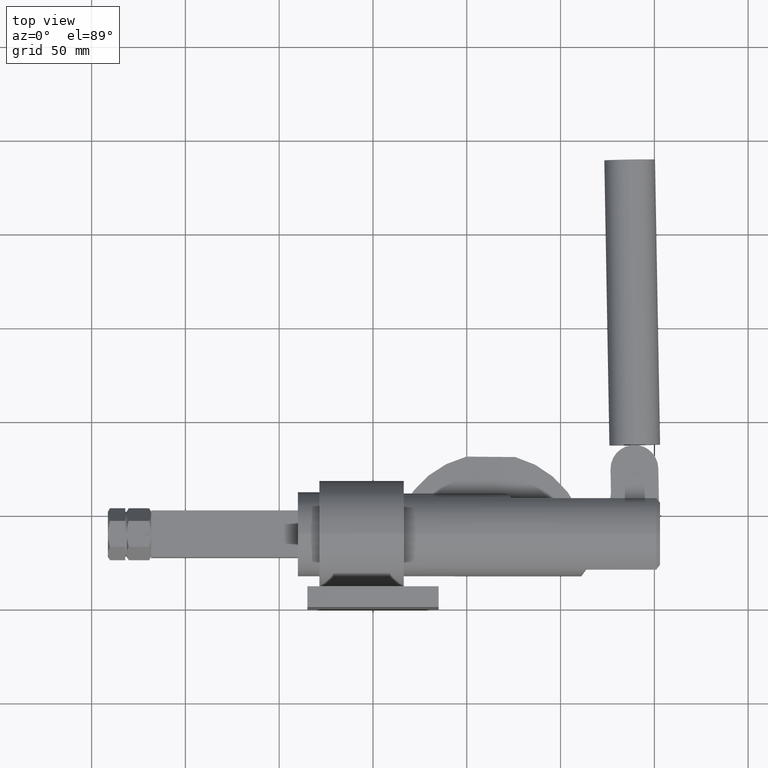
[diagram: clean part render]
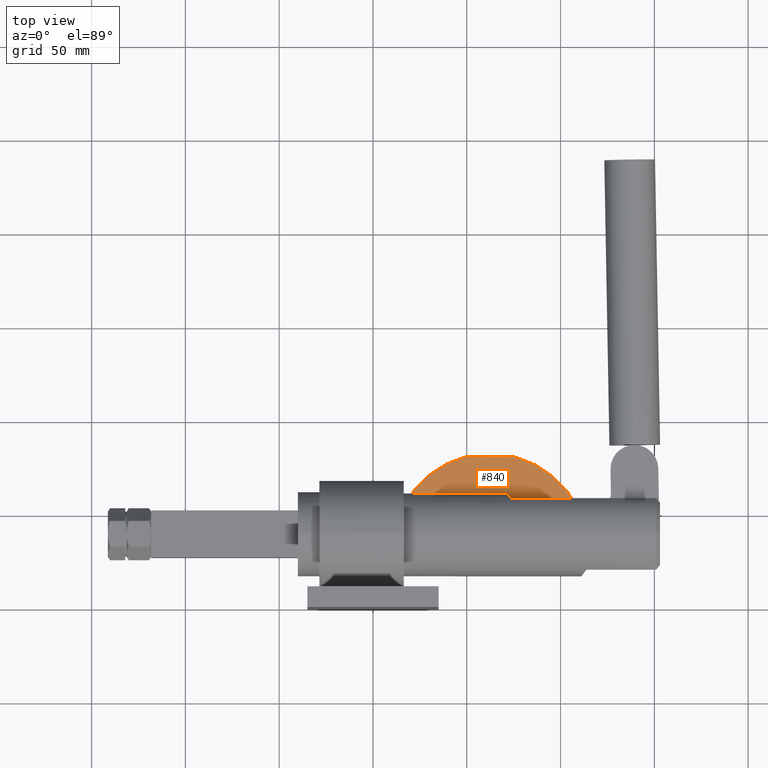
[diagram: same view with one face highlighted and labeled with its STEP entity id]
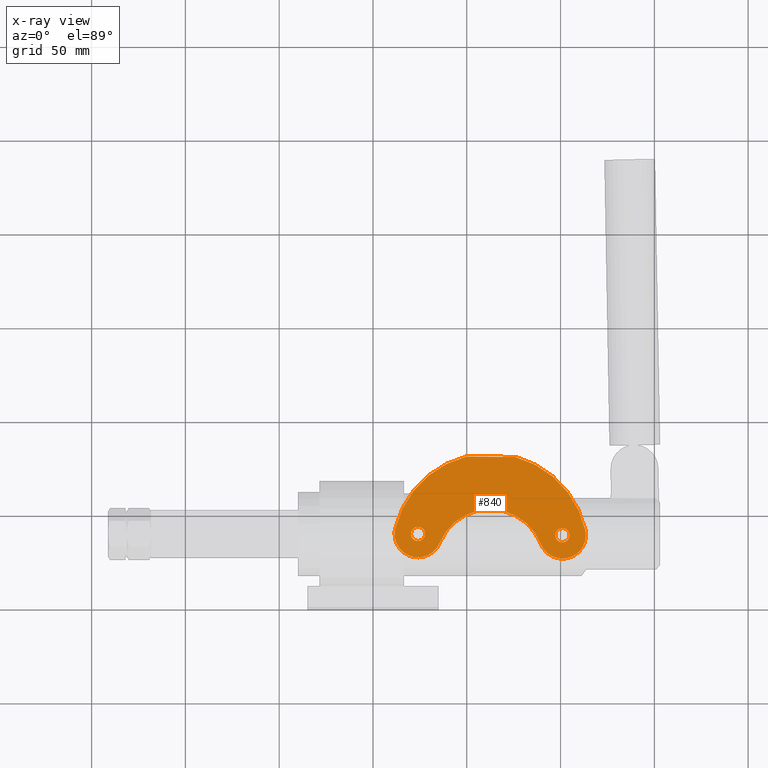
[diagram: x-ray of the same camera — body ghosted, the highlighted face saturated]
A machine part, top view. The second image highlights one B-rep face of the part: STEP entity #840.
The next image is the same camera in x-ray: the body ghosted, the highlighted face saturated — about 0% of this face is hidden behind the body in this view.
In plain terms, the highlighted planar face has unit normal (0, -0, 1).
Its self-contained STEP definition (entity closure, byte-faithful):
#4 = EDGE_CURVE ( 'NONE', #3990, #2941, #3293, .T. ) ;
#37 = CIRCLE ( 'NONE', #846, 3.750000000000010200 ) ;
#49 = CARTESIAN_POINT ( 'NONE',  ( 24.00934340271856400, 35.85000000000053400, 5.999999999999998200 ) ) ;
#122 = CARTESIAN_POINT ( 'NONE',  ( 101.0062022095644400, 38.90449020234226700, 6.000000000000000000 ) ) ;
#154 = CIRCLE ( 'NONE', #991, 3.750000000000003600 ) ;
#159 = AXIS2_PLACEMENT_3D ( 'NONE', #2411, #2856, #276 ) ;
#188 = AXIS2_PLACEMENT_3D ( 'NONE', #122, #3160, #562 ) ;
#233 = FACE_BOUND ( 'NONE', #352, .T. ) ;
#276 = DIRECTION ( 'NONE',  ( 0.9999592052837128500, -0.009032594774782706400, -2.601749581763633000E-021 ) ) ;
#322 = EDGE_CURVE ( 'NONE', #4921, #3791, #768, .T. ) ;
#352 = EDGE_LOOP ( 'NONE', ( #4397, #4236 ) ) ;
#371 = DIRECTION ( 'NONE',  ( 0.0000000000000000000, -1.000000000000000000, 0.0000000000000000000 ) ) ;
#374 = FACE_BOUND ( 'NONE', #2447, .T. ) ;
#413 = DIRECTION ( 'NONE',  ( 2.568924252365853200E-021, -3.645699685958769200E-021, 1.000000000000000000 ) ) ;
#428 = EDGE_CURVE ( 'NONE', #4684, #3716, #4535, .T. ) ;
#562 = DIRECTION ( 'NONE',  ( 0.9999592052837128500, -0.009032594774782689100, 0.0000000000000000000 ) ) ;
#605 = CARTESIAN_POINT ( 'NONE',  ( 113.2144943362974300, 41.58918820181060000, 6.000000000000000000 ) ) ;
#638 = EDGE_CURVE ( 'NONE', #3791, #4921, #37, .T. ) ;
#768 = CIRCLE ( 'NONE', #3939, 3.750000000000010200 ) ;
#793 = AXIS2_PLACEMENT_3D ( 'NONE', #2225, #5220, #2669 ) ;
#832 = ORIENTED_EDGE ( 'NONE', *, *, #3445, .T. ) ;
#840 = ADVANCED_FACE ( 'NONE', ( #2379, #233, #374 ), #3705, .T. ) ;
#846 = AXIS2_PLACEMENT_3D ( 'NONE', #4432, #1874, #4880 ) ;
#885 = EDGE_CURVE ( 'NONE', #5464, #1428, #4868, .T. ) ;
#991 = AXIS2_PLACEMENT_3D ( 'NONE', #5508, #2950, #371 ) ;
#1054 = VERTEX_POINT ( 'NONE', #49 ) ;
#1055 = DIRECTION ( 'NONE',  ( 0.0000000000000000000, -1.000000000000000000, 0.0000000000000000000 ) ) ;
#1135 = VERTEX_POINT ( 'NONE', #2675 ) ;
#1177 = CARTESIAN_POINT ( 'NONE',  ( 24.00934340271856400, 39.60000000000053400, 5.999999999999998200 ) ) ;
#1193 = ORIENTED_EDGE ( 'NONE', *, *, #1426, .T. ) ;
#1396 = EDGE_CURVE ( 'NONE', #3716, #3990, #5123, .T. ) ;
#1426 = EDGE_CURVE ( 'NONE', #1135, #1054, #154, .T. ) ;
#1428 = VERTEX_POINT ( 'NONE', #4638 ) ;
#1444 = CARTESIAN_POINT ( 'NONE',  ( 11.50985333667216000, 39.71290743468532000, 6.000000000000000000 ) ) ;
#1472 = AXIS2_PLACEMENT_3D ( 'NONE', #1177, #4203, #1624 ) ;
#1550 = CARTESIAN_POINT ( 'NONE',  ( 49.81740754496326000, 80.86856975427673400, 6.000000000000000000 ) ) ;
#1624 = DIRECTION ( 'NONE',  ( 0.0000000000000000000, -1.000000000000000000, 0.0000000000000000000 ) ) ;
#1874 = DIRECTION ( 'NONE',  ( -2.568924252365853200E-021, 3.645699685958769200E-021, -1.000000000000000000 ) ) ;
#1936 = CARTESIAN_POINT ( 'NONE',  ( 101.0062022095644200, 38.90449020234226700, 5.999999999999998200 ) ) ;
#2033 = CARTESIAN_POINT ( 'NONE',  ( 24.00934340271856400, 39.60000000000053400, 6.000000000000000000 ) ) ;
#2088 = CARTESIAN_POINT ( 'NONE',  ( 62.36784044959841800, 23.76094370536889500, 6.000000000000000000 ) ) ;
#2103 = AXIS2_PLACEMENT_3D ( 'NONE', #2123, #5117, #2560 ) ;
#2123 = CARTESIAN_POINT ( 'NONE',  ( 24.00934340271856400, 39.60000000000053400, 6.000000000000000000 ) ) ;
#2163 = ORIENTED_EDGE ( 'NONE', *, *, #4132, .T. ) ;
#2225 = CARTESIAN_POINT ( 'NONE',  ( 62.42799908908818900, 30.42084452402235700, 6.000000000000000000 ) ) ;
#2379 = FACE_OUTER_BOUND ( 'NONE', #5135, .T. ) ;
#2411 = CARTESIAN_POINT ( 'NONE',  ( 62.42799908908818900, 30.42084452402235700, 6.000000000000000000 ) ) ;
#2423 = CARTESIAN_POINT ( 'NONE',  ( 101.0062022095644200, 35.15449020234225900, 5.999999999999998200 ) ) ;
#2447 = EDGE_LOOP ( 'NONE', ( #1193, #832 ) ) ;
#2476 = DIRECTION ( 'NONE',  ( 0.9999592052837128500, -0.009032594774782689100, 0.0000000000000000000 ) ) ;
#2502 = ORIENTED_EDGE ( 'NONE', *, *, #5234, .T. ) ;
#2560 = DIRECTION ( 'NONE',  ( 0.9999592052837128500, -0.009032594774782689100, 0.0000000000000000000 ) ) ;
#2610 = CARTESIAN_POINT ( 'NONE',  ( 49.81740754496326000, 80.86856975427673400, 6.000000000000000000 ) ) ;
#2669 = DIRECTION ( 'NONE',  ( 0.9999592052837128500, -0.009032594774782741100, 0.0000000000000000000 ) ) ;
#2675 = CARTESIAN_POINT ( 'NONE',  ( 24.00934340271856400, 43.35000000000054100, 5.999999999999998200 ) ) ;
#2856 = DIRECTION ( 'NONE',  ( 2.568924252365853200E-021, -3.645699685958769200E-021, 1.000000000000000000 ) ) ;
#2906 = CIRCLE ( 'NONE', #1472, 3.750000000000003600 ) ;
#2941 = VERTEX_POINT ( 'NONE', #3854 ) ;
#2950 = DIRECTION ( 'NONE',  ( -2.568924252365853200E-021, 3.645699685958769200E-021, -1.000000000000000000 ) ) ;
#2995 = CARTESIAN_POINT ( 'NONE',  ( 62.42799908908818900, 30.42084452402235700, 6.000000000000000000 ) ) ;
#3036 = DIRECTION ( 'NONE',  ( -0.9999592052837128500, 0.009032594774782706400, 2.601749581763633000E-021 ) ) ;
#3062 = CARTESIAN_POINT ( 'NONE',  ( 35.56310757346550800, 34.82919991125606900, 6.000000000000000000 ) ) ;
#3160 = DIRECTION ( 'NONE',  ( 2.568924252365853200E-021, -3.645699685958769200E-021, 1.000000000000000000 ) ) ;
#3193 = AXIS2_PLACEMENT_3D ( 'NONE', #2088, #3393, #3811 ) ;
#3232 = DIRECTION ( 'NONE',  ( -2.568924252365853200E-021, 3.645699685958769200E-021, -1.000000000000000000 ) ) ;
#3258 = CIRCLE ( 'NONE', #793, 51.99999999999999300 ) ;
#3293 = CIRCLE ( 'NONE', #3193, 29.00000000000000700 ) ;
#3332 = ORIENTED_EDGE ( 'NONE', *, *, #885, .T. ) ;
#3354 = AXIS2_PLACEMENT_3D ( 'NONE', #2995, #413, #3441 ) ;
#3393 = DIRECTION ( 'NONE',  ( -2.568924252365853200E-021, 3.645699685958769200E-021, -1.000000000000000000 ) ) ;
#3434 = AXIS2_PLACEMENT_3D ( 'NONE', #2033, #5027, #2476 ) ;
#3441 = DIRECTION ( 'NONE',  ( 0.9999592052837128500, -0.009032594774782741100, 0.0000000000000000000 ) ) ;
#3442 = ORIENTED_EDGE ( 'NONE', *, *, #4, .T. ) ;
#3445 = EDGE_CURVE ( 'NONE', #1054, #1135, #2906, .T. ) ;
#3468 = ORIENTED_EDGE ( 'NONE', *, *, #428, .T. ) ;
#3549 = EDGE_CURVE ( 'NONE', #5551, #4684, #3258, .T. ) ;
#3705 = PLANE ( 'NONE',  #159 ) ;
#3716 = VERTEX_POINT ( 'NONE', #1444 ) ;
#3791 = VERTEX_POINT ( 'NONE', #2423 ) ;
#3811 = DIRECTION ( 'NONE',  ( 0.9999592052837129600, -0.009032594774782758500, 0.0000000000000000000 ) ) ;
#3854 = CARTESIAN_POINT ( 'NONE',  ( 89.36814143849034100, 34.34318101650691100, 6.000000000000000000 ) ) ;
#3939 = AXIS2_PLACEMENT_3D ( 'NONE', #1936, #3232, #1055 ) ;
#3990 = VERTEX_POINT ( 'NONE', #3062 ) ;
#4014 = VECTOR ( 'NONE', #3036, 1000.000000000000000 ) ;
#4076 = ORIENTED_EDGE ( 'NONE', *, *, #1396, .T. ) ;
#4132 = EDGE_CURVE ( 'NONE', #2941, #5464, #4783, .T. ) ;
#4203 = DIRECTION ( 'NONE',  ( -2.568924252365853200E-021, 3.645699685958769200E-021, -1.000000000000000000 ) ) ;
#4236 = ORIENTED_EDGE ( 'NONE', *, *, #638, .T. ) ;
#4397 = ORIENTED_EDGE ( 'NONE', *, *, #322, .T. ) ;
#4432 = CARTESIAN_POINT ( 'NONE',  ( 101.0062022095644200, 38.90449020234226700, 5.999999999999998200 ) ) ;
#4535 = CIRCLE ( 'NONE', #2103, 12.49999999999999600 ) ;
#4638 = CARTESIAN_POINT ( 'NONE',  ( 75.94784343362671600, 80.63253448661423300, 6.000000000000000000 ) ) ;
#4684 = VERTEX_POINT ( 'NONE', #5290 ) ;
#4691 = ORIENTED_EDGE ( 'NONE', *, *, #3549, .T. ) ;
#4783 = CIRCLE ( 'NONE', #188, 12.49999999999999600 ) ;
#4868 = CIRCLE ( 'NONE', #3354, 51.99999999999999300 ) ;
#4880 = DIRECTION ( 'NONE',  ( 0.0000000000000000000, -1.000000000000000000, 0.0000000000000000000 ) ) ;
#4921 = VERTEX_POINT ( 'NONE', #4995 ) ;
#4995 = CARTESIAN_POINT ( 'NONE',  ( 101.0062022095644200, 42.65449020234228100, 5.999999999999998200 ) ) ;
#5027 = DIRECTION ( 'NONE',  ( 2.568924252365853200E-021, -3.645699685958769200E-021, 1.000000000000000000 ) ) ;
#5117 = DIRECTION ( 'NONE',  ( 2.568924252365853200E-021, -3.645699685958769200E-021, 1.000000000000000000 ) ) ;
#5123 = CIRCLE ( 'NONE', #3434, 12.49999999999999600 ) ;
#5135 = EDGE_LOOP ( 'NONE', ( #4691, #3468, #4076, #3442, #2163, #3332, #2502 ) ) ;
#5150 = LINE ( 'NONE', #2610, #4014 ) ;
#5220 = DIRECTION ( 'NONE',  ( 2.568924252365853200E-021, -3.645699685958769200E-021, 1.000000000000000000 ) ) ;
#5234 = EDGE_CURVE ( 'NONE', #1428, #5551, #5150, .T. ) ;
#5290 = CARTESIAN_POINT ( 'NONE',  ( 11.85154097032312100, 42.50479603670248700, 6.000000000000000000 ) ) ;
#5464 = VERTEX_POINT ( 'NONE', #605 ) ;
#5508 = CARTESIAN_POINT ( 'NONE',  ( 24.00934340271856400, 39.60000000000053400, 5.999999999999998200 ) ) ;
#5551 = VERTEX_POINT ( 'NONE', #1550 ) ;